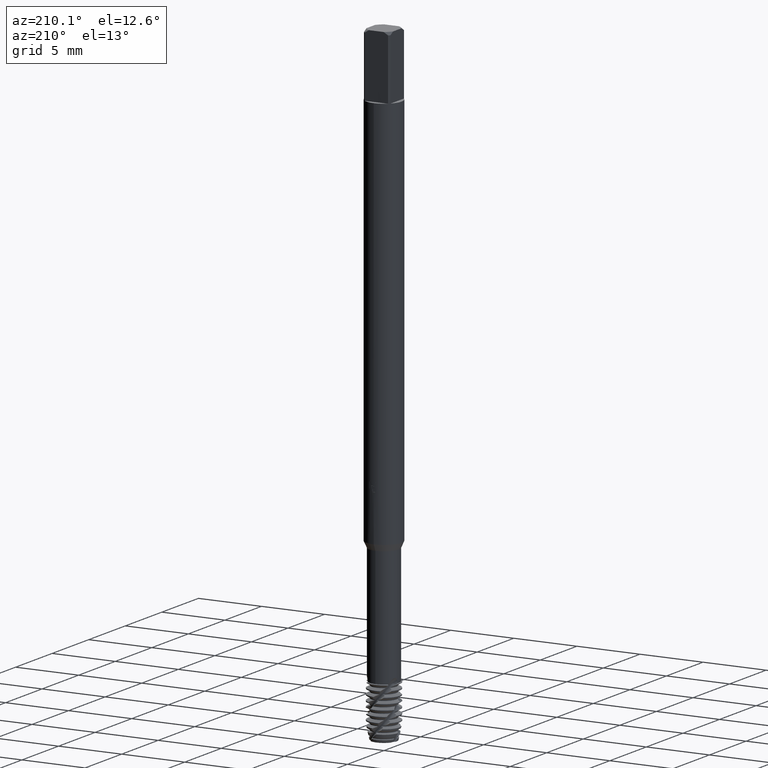
[diagram: clean part render]
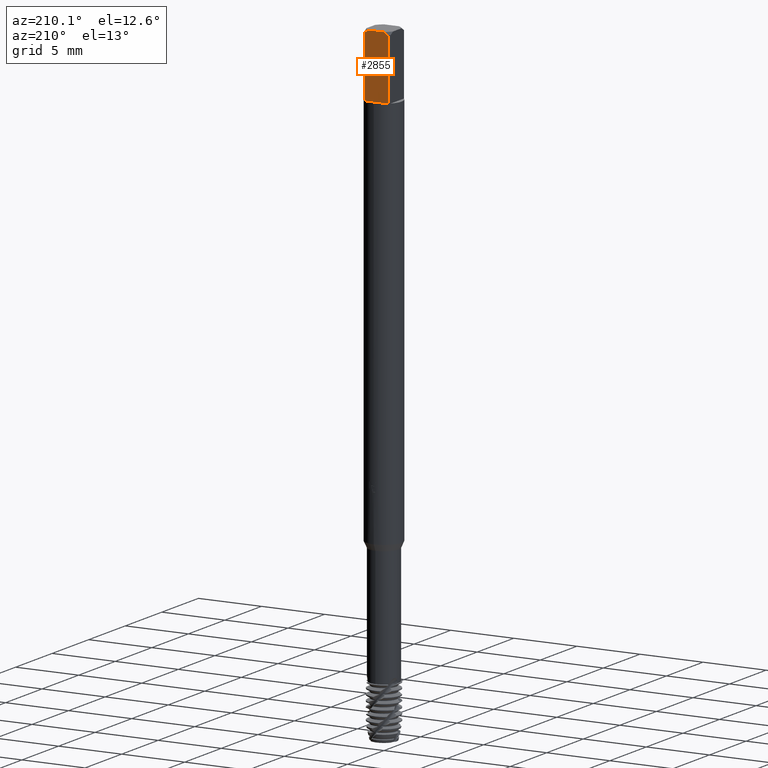
[diagram: same view with one face highlighted and labeled with its STEP entity id]
A machine part, auxiliary view. The second image highlights one B-rep face of the part: STEP entity #2855.
In plain terms, the highlighted planar face has unit normal (0, 1, 0).
Its self-contained STEP definition (entity closure, byte-faithful):
#1609=VERTEX_POINT('',#4476);
#1897=EDGE_CURVE('',#2149,#3003,#4790,.T.);
#1973=VERTEX_POINT('',#4871);
#2149=VERTEX_POINT('',#5063);
#2855=ADVANCED_FACE('',(#5829),#5830,.T.);
#2861=EDGE_CURVE('',#1973,#1609,#5837,.T.);
#2889=EDGE_CURVE('',#1609,#3673,#5868,.T.);
#3003=VERTEX_POINT('',#5988);
#3011=EDGE_CURVE('',#3003,#3203,#5996,.T.);
#3203=VERTEX_POINT('',#6206);
#3341=EDGE_CURVE('',#3673,#2149,#6362,.T.);
#3449=EDGE_CURVE('',#3203,#1973,#6476,.T.);
#3673=VERTEX_POINT('',#6716);
#4476=CARTESIAN_POINT('',(-0.580947501931112,1.05,0.0));
#4790=LINE('',#9261,#9262);
#4871=CARTESIAN_POINT('',(0.580947501931112,1.05,0.0));
#5063=CARTESIAN_POINT('',(-0.926012958872607,1.05,-5.0));
#5829=FACE_OUTER_BOUND('',#12603,.T.);
#5830=PLANE('',#12604);
#5837=LINE('',#12612,#12613);
#5868=(B_SPLINE_CURVE(2,(#12664,#12665,#12666),.UNSPECIFIED.,.F.,.F.)B_SPLINE_CURVE_WITH_KNOTS((3,3),(0.0,0.399055598432478),.UNSPECIFIED.)RATIONAL_B_SPLINE_CURVE((1.0,1.00892504363194,1.0))BOUNDED_CURVE()REPRESENTATION_ITEM('')GEOMETRIC_REPRESENTATION_ITEM()CURVE());
#5988=CARTESIAN_POINT('',(0.926012958872607,1.05,-5.0));
#5996=LINE('',#13018,#13019);
#6206=CARTESIAN_POINT('',(0.926012958872607,1.05,-0.200000000000003));
#6362=LINE('',#14543,#14544);
#6476=(B_SPLINE_CURVE(2,(#14813,#14814,#14815),.UNSPECIFIED.,.F.,.F.)B_SPLINE_CURVE_WITH_KNOTS((3,3),(0.0,0.399055598432478),.UNSPECIFIED.)RATIONAL_B_SPLINE_CURVE((1.0,1.00892504363194,1.0))BOUNDED_CURVE()REPRESENTATION_ITEM('')GEOMETRIC_REPRESENTATION_ITEM()CURVE());
#6716=CARTESIAN_POINT('',(-0.926012958872607,1.05,-0.200000000000003));
#9261=CARTESIAN_POINT('',(0.0,1.05,-5.0));
#9262=VECTOR('',#18617,1.0);
#12603=EDGE_LOOP('',(#19716,#19717,#19718,#19719,#19720,#19721));
#12604=AXIS2_PLACEMENT_3D('',#19722,#19723,#19724);
#12612=CARTESIAN_POINT('',(0.0,1.05,0.0));
#12613=VECTOR('',#19733,1.0);
#12664=CARTESIAN_POINT('',(-0.580947501931112,1.05,5.55111512312578E-017));
#12665=CARTESIAN_POINT('',(-0.74020848205796,1.05,-0.0771018904664953));
#12666=CARTESIAN_POINT('',(-0.926012958872606,1.05,-0.200000000000003));
#13018=CARTESIAN_POINT('',(0.926012958872607,1.05,-2.6));
#13019=VECTOR('',#19852,1.0);
#14543=CARTESIAN_POINT('',(-0.926012958872607,1.05,-2.6));
#14544=VECTOR('',#20248,1.0);
#14813=CARTESIAN_POINT('',(0.926012958872606,1.05,-0.200000000000003));
#14814=CARTESIAN_POINT('',(0.74020848205796,1.05,-0.0771018904664953));
#14815=CARTESIAN_POINT('',(0.580947501931112,1.05,5.55111512312578E-017));
#18617=DIRECTION('',(1.0,0.0,0.0));
#19716=ORIENTED_EDGE('',*,*,#3341,.F.);
#19717=ORIENTED_EDGE('',*,*,#2889,.F.);
#19718=ORIENTED_EDGE('',*,*,#2861,.F.);
#19719=ORIENTED_EDGE('',*,*,#3449,.F.);
#19720=ORIENTED_EDGE('',*,*,#3011,.F.);
#19721=ORIENTED_EDGE('',*,*,#1897,.F.);
#19722=CARTESIAN_POINT('',(0.0,1.05,-2.0));
#19723=DIRECTION('',(0.0,1.0,0.0));
#19724=DIRECTION('',(0.0,0.0,-1.0));
#19733=DIRECTION('',(-1.0,0.0,0.0));
#19852=DIRECTION('',(-0.0,-0.0,1.0));
#20248=DIRECTION('',(0.0,0.0,-1.0));